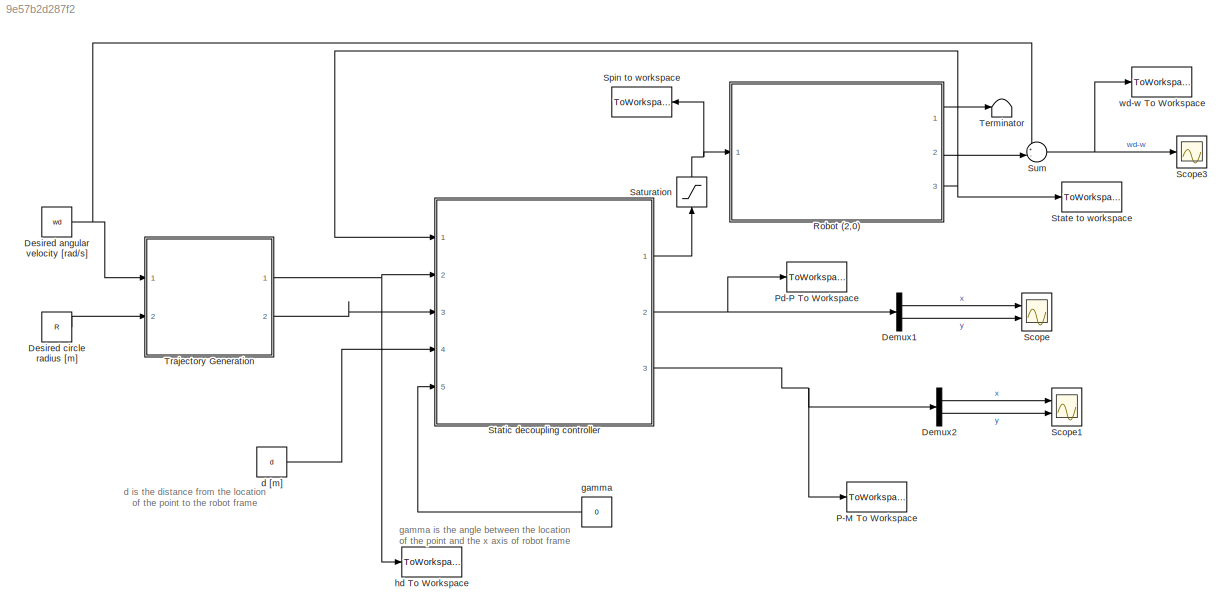
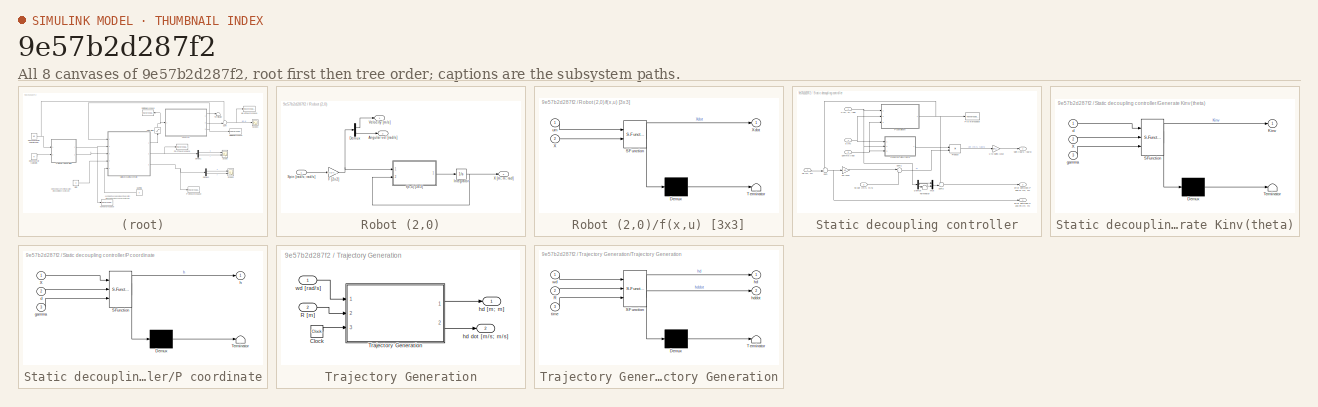
[diagram: thumbnail index - all 8 canvases of the model, root first then tree order]
MODEL slx_9e57b2d287f2
KIND model
CONFIG AbsTol = auto
CONFIG EnableMultiTasking = off
CONFIG FixedStep = auto
CONFIG MaxStep = auto
CONFIG MinStep = auto
CONFIG RelTol = 1e-3
CONFIG SampleTimeConstraint = Unconstrained
CONFIG Solver = VariableStepAuto
CONFIG SolverName = VariableStepAuto
CONFIG StartTime = 0.0
CONFIG StopTime = time
BLOCK [Demux] Demux1
  DisplayOption = bar
  Outputs = 2
  Ports = [1, 2]
BLOCK [Demux] Demux2
  DisplayOption = bar
  Outputs = 2
  Ports = [1, 2]
BLOCK [Constant] Desired angular velocity [rad//s]
  Value = wd
BLOCK [Constant] Desired circle radius [m]
  Value = R
BLOCK [ToWorkspace] P-M To Workspace
  FixptAsFi = on
  MaxDataPoints = inf
  Ports = [1]
  SampleTime = -1
  Save2DSignal = 2-D array (concatenate along first dimension)
  VariableName = P_M
BLOCK [ToWorkspace] Pd-P To Workspace
  FixptAsFi = on
  MaxDataPoints = inf
  Ports = [1]
  SampleTime = -1
  Save2DSignal = 2-D array (concatenate along first dimension)
  VariableName = Pd_P
BLOCK [SubSystem] Robot (2,0)
  Ports = [1, 3]
  RequestExecContextInheritance = off
  Variant = off
BLOCK [Outport] Robot (2,0)/Angular vel [rad//s]
  IconDisplay = Port number
  Port = 2
BLOCK [Demux] Robot (2,0)/Demux
  DisplayOption = bar
  Outputs = 2
  Ports = [1, 2]
BLOCK [Gain] Robot (2,0)/F [2x2]
  Gain = [r/2 r/2; r/(2*L) -r/(2*L)]
  Multiplication = Matrix(K*u)
  OutDataTypeStr = Inherit: Inherit via internal rule
  ParamDataTypeStr = Inherit: Inherit via internal rule
  SaturateOnIntegerOverflow = off
BLOCK [Integrator] Robot (2,0)/Integrator
  InitialCondition = Xstart
  Ports = [1, 1]
BLOCK [Inport] Robot (2,0)/Spin [rad//s; rad//s]
  IconDisplay = Port number
BLOCK [Outport] Robot (2,0)/Velocity [m//s]
  IconDisplay = Port number
BLOCK [Outport] Robot (2,0)/X [m; m; rad]
  IconDisplay = Port number
  Port = 3
BLOCK [SubSystem] Robot (2,0)/f(x,u) [3x3]
  ErrorFcn = Stateflow.Translate.translate
  PermitHierarchicalResolution = ExplicitOnly
  Ports = [2, 1]
  RequestExecContextInheritance = off
  SFBlockType = MATLAB Function
  TreatAsAtomicUnit = on
  Variant = off
BLOCK [Demux] Robot (2,0)/f(x,u) [3x3]/ Demux 
  Outputs = 1
  Ports = [1, 1]
BLOCK [S-Function] Robot (2,0)/f(x,u) [3x3]/ SFunction 
  EnableBusSupport = on
  FunctionName = sf_sfun
  PortCounts = [2 2]
  Ports = [2, 2]
  SFcnIsStateOwnerBlock = off
  SFunctionDeploymentMode = off
  Tag = Stateflow S-Function staticDecouplingControl 2
BLOCK [Terminator] Robot (2,0)/f(x,u) [3x3]/ Terminator 
BLOCK [Inport] Robot (2,0)/f(x,u) [3x3]/X
  IconDisplay = Port number
  Port = 2
BLOCK [Outport] Robot (2,0)/f(x,u) [3x3]/Xdot
  IconDisplay = Port number
BLOCK [Inport] Robot (2,0)/f(x,u) [3x3]/um
  IconDisplay = Port number
BLOCK [Saturate] Saturation
  InputPortMap = u0
  LowerLimit = satMin
  Ports = [1, 1]
  UpperLimit = satMax
BLOCK [Scope] Scope
  NumInputPorts = 2
  Ports = [2]
  ScopeSpecificationString = Simulink.scopes.TimeScopeBlockCfg('CurrentConfiguration', extmgr.ConfigurationSet(extmgr.Configuration('Core','General UI',true),extmgr.Configuration('Core','Source UI',true),extmgr.Configuration('Sources','WiredSimulink',true),extmgr.Configuration('Visuals','Time Domain',true,'SerializedDisplays',{struct('MinYLimReal','-0.16889','MaxYLimReal','0.01997','YLabelReal','','MinYLimMag','0.00000','MaxY...<+1323ch>
BLOCK [Scope] Scope1
  NumInputPorts = 2
  Ports = [2]
  ScopeSpecificationString = Simulink.scopes.TimeScopeBlockCfg('CurrentConfiguration', extmgr.ConfigurationSet(extmgr.Configuration('Core','General UI',true),extmgr.Configuration('Core','Source UI',true),extmgr.Configuration('Sources','WiredSimulink',true,'DataLoggingVariableName','ScopeData1'),extmgr.Configuration('Visuals','Time Domain',true,'SerializedDisplays',{struct('MinYLimReal','-0.1875','MaxYLimReal','0.1875','YLabel...<+1356ch>
BLOCK [Scope] Scope3
  NumInputPorts = 1
  Ports = [1]
  ScopeSpecificationString = Simulink.scopes.TimeScopeBlockCfg('CurrentConfiguration', extmgr.ConfigurationSet(extmgr.Configuration('Core','General UI',true),extmgr.Configuration('Core','Source UI',true),extmgr.Configuration('Sources','WiredSimulink',true,'DataLoggingVariableName','ScopeData1'),extmgr.Configuration('Visuals','Time Domain',true,'SerializedDisplays',{struct('MinYLimReal','0.07408','MaxYLimReal','0.99773','YLabe...<+1361ch>
BLOCK [ToWorkspace] Spin to workspace
  FixptAsFi = on
  MaxDataPoints = inf
  Ports = [1]
  SampleTime = -1
  Save2DSignal = 2-D array (concatenate along first dimension)
  VariableName = spin
BLOCK [ToWorkspace] State to workspace
  FixptAsFi = on
  MaxDataPoints = inf
  Ports = [1]
  SampleTime = -1
  Save2DSignal = 2-D array (concatenate along first dimension)
  VariableName = X
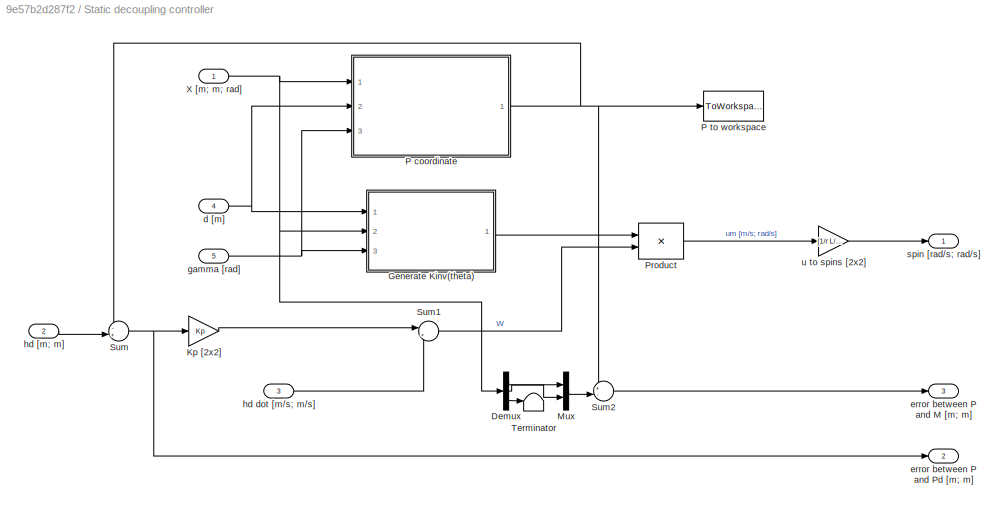
BLOCK [SubSystem] Static decoupling controller
  Ports = [5, 3]
  RequestExecContextInheritance = off
  Variant = off
BLOCK [Demux] Static decoupling controller/Demux
  DisplayOption = bar
  Outputs = 3
  Ports = [1, 3]
BLOCK [SubSystem] Static decoupling controller/Generate Kinv(theta)
  ErrorFcn = Stateflow.Translate.translate
  PermitHierarchicalResolution = ExplicitOnly
  Ports = [3, 1]
  RequestExecContextInheritance = off
  SFBlockType = MATLAB Function
  TreatAsAtomicUnit = on
  Variant = off
BLOCK [Demux] Static decoupling controller/Generate Kinv(theta)/ Demux 
  Outputs = 1
  Ports = [1, 1]
BLOCK [S-Function] Static decoupling controller/Generate Kinv(theta)/ SFunction 
  EnableBusSupport = on
  FunctionName = sf_sfun
  PortCounts = [3 2]
  Ports = [3, 2]
  SFcnIsStateOwnerBlock = off
  SFunctionDeploymentMode = off
  Tag = Stateflow S-Function staticDecouplingControl 1
BLOCK [Terminator] Static decoupling controller/Generate Kinv(theta)/ Terminator 
BLOCK [Outport] Static decoupling controller/Generate Kinv(theta)/Kinv
  IconDisplay = Port number
BLOCK [Inport] Static decoupling controller/Generate Kinv(theta)/X
  IconDisplay = Port number
  Port = 2
BLOCK [Inport] Static decoupling controller/Generate Kinv(theta)/d
  IconDisplay = Port number
BLOCK [Inport] Static decoupling controller/Generate Kinv(theta)/gamma
  IconDisplay = Port number
  Port = 3
BLOCK [Gain] Static decoupling controller/Kp [2x2]
  Gain = Kp
  Multiplication = Matrix(K*u)
  OutDataTypeStr = Inherit: Inherit via internal rule
  ParamDataTypeStr = Inherit: Inherit via internal rule
  SaturateOnIntegerOverflow = off
BLOCK [Mux] Static decoupling controller/Mux
  DisplayOption = bar
  Inputs = 2
  Ports = [2, 1]
BLOCK [SubSystem] Static decoupling controller/P coordinate
  ErrorFcn = Stateflow.Translate.translate
  PermitHierarchicalResolution = ExplicitOnly
  Ports = [3, 1]
  RequestExecContextInheritance = off
  SFBlockType = MATLAB Function
  TreatAsAtomicUnit = on
  Variant = off
BLOCK [Demux] Static decoupling controller/P coordinate/ Demux 
  Outputs = 1
  Ports = [1, 1]
BLOCK [S-Function] Static decoupling controller/P coordinate/ SFunction 
  EnableBusSupport = on
  FunctionName = sf_sfun
  PortCounts = [3 2]
  Ports = [3, 2]
  SFcnIsStateOwnerBlock = off
  SFunctionDeploymentMode = off
  Tag = Stateflow S-Function staticDecouplingControl 4
BLOCK [Terminator] Static decoupling controller/P coordinate/ Terminator 
BLOCK [Inport] Static decoupling controller/P coordinate/X
  IconDisplay = Port number
BLOCK [Inport] Static decoupling controller/P coordinate/d
  IconDisplay = Port number
  Port = 2
BLOCK [Inport] Static decoupling controller/P coordinate/gamma
  IconDisplay = Port number
  Port = 3
BLOCK [Outport] Static decoupling controller/P coordinate/h
  IconDisplay = Port number
BLOCK [ToWorkspace] Static decoupling controller/P to workspace
  FixptAsFi = on
  MaxDataPoints = inf
  Ports = [1]
  SampleTime = -1
  Save2DSignal = 2-D array (concatenate along first dimension)
  VariableName = P
BLOCK [Product] Static decoupling controller/Product
  InputSameDT = off
  Multiplication = Matrix(*)
  OutDataTypeStr = Inherit: Inherit via internal rule
  Ports = [2, 1]
  RndMeth = Floor
  SaturateOnIntegerOverflow = off
BLOCK [Sum] Static decoupling controller/Sum
  IconShape = round
  InputSameDT = off
  Inputs = -+|
  OutDataTypeStr = Inherit: Inherit via internal rule
  Ports = [2, 1]
  SaturateOnIntegerOverflow = off
BLOCK [Sum] Static decoupling controller/Sum1
  IconShape = round
  InputSameDT = off
  Inputs = |++
  OutDataTypeStr = Inherit: Inherit via internal rule
  Ports = [2, 1]
  SaturateOnIntegerOverflow = off
BLOCK [Sum] Static decoupling controller/Sum2
  IconShape = round
  InputSameDT = off
  Inputs = +-|
  OutDataTypeStr = Inherit: Inherit via internal rule
  Ports = [2, 1]
  SaturateOnIntegerOverflow = off
BLOCK [Terminator] Static decoupling controller/Terminator
BLOCK [Inport] Static decoupling controller/X [m; m; rad]
  IconDisplay = Port number
BLOCK [Inport] Static decoupling controller/d [m]
  IconDisplay = Port number
  Port = 4
BLOCK [Outport] Static decoupling controller/error between P and M [m; m]
  IconDisplay = Port number
  Port = 3
BLOCK [Outport] Static decoupling controller/error between P and Pd [m; m] 
  IconDisplay = Port number
  Port = 2
BLOCK [Inport] Static decoupling controller/gamma [rad]
  IconDisplay = Port number
  Port = 5
BLOCK [Inport] Static decoupling controller/hd [m; m]
  IconDisplay = Port number
  Port = 2
BLOCK [Inport] Static decoupling controller/hd dot [m//s; m//s]
  IconDisplay = Port number
  Port = 3
BLOCK [Outport] Static decoupling controller/spin [rad//s; rad//s]
  IconDisplay = Port number
BLOCK [Gain] Static decoupling controller/u to spins [2x2]
  Gain = [1/r L/r; 1/r -L/r]
  Multiplication = Matrix(K*u)
  OutDataTypeStr = Inherit: Inherit via internal rule
  ParamDataTypeStr = Inherit: Inherit via internal rule
  SaturateOnIntegerOverflow = off
BLOCK [Sum] Sum
  IconShape = round
  InputSameDT = off
  Inputs = +-|
  OutDataTypeStr = Inherit: Inherit via internal rule
  Ports = [2, 1]
  SaturateOnIntegerOverflow = off
BLOCK [Terminator] Terminator
BLOCK [SubSystem] Trajectory Generation
  Ports = [2, 2]
  RequestExecContextInheritance = off
  Variant = off
BLOCK [Clock] Trajectory Generation/Clock
BLOCK [Inport] Trajectory Generation/R [m]
  IconDisplay = Port number
  Port = 2
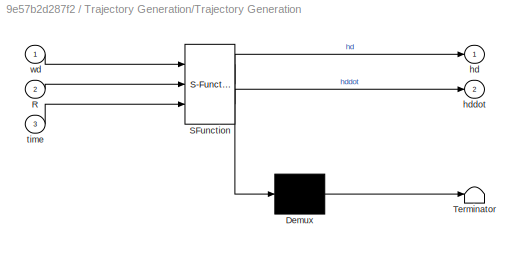
BLOCK [SubSystem] Trajectory Generation/Trajectory Generation
  ErrorFcn = Stateflow.Translate.translate
  PermitHierarchicalResolution = ExplicitOnly
  Ports = [3, 2]
  RequestExecContextInheritance = off
  SFBlockType = MATLAB Function
  TreatAsAtomicUnit = on
  Variant = off
BLOCK [Demux] Trajectory Generation/Trajectory Generation/ Demux 
  Outputs = 1
  Ports = [1, 1]
BLOCK [S-Function] Trajectory Generation/Trajectory Generation/ SFunction 
  EnableBusSupport = on
  FunctionName = sf_sfun
  PortCounts = [3 3]
  Ports = [3, 3]
  SFcnIsStateOwnerBlock = off
  SFunctionDeploymentMode = off
  Tag = Stateflow S-Function staticDecouplingControl 3
BLOCK [Terminator] Trajectory Generation/Trajectory Generation/ Terminator 
BLOCK [Inport] Trajectory Generation/Trajectory Generation/R
  IconDisplay = Port number
  Port = 2
BLOCK [Outport] Trajectory Generation/Trajectory Generation/hd
  IconDisplay = Port number
BLOCK [Outport] Trajectory Generation/Trajectory Generation/hddot
  IconDisplay = Port number
  Port = 2
BLOCK [Inport] Trajectory Generation/Trajectory Generation/time
  IconDisplay = Port number
  Port = 3
BLOCK [Inport] Trajectory Generation/Trajectory Generation/wd
  IconDisplay = Port number
BLOCK [Outport] Trajectory Generation/hd [m; m]
  IconDisplay = Port number
BLOCK [Outport] Trajectory Generation/hd dot [m//s; m//s]
  IconDisplay = Port number
  Port = 2
BLOCK [Inport] Trajectory Generation/wd [rad//s]
  IconDisplay = Port number
BLOCK [Constant] d [m]
  Value = d
BLOCK [Constant] gamma
  Value = 0
BLOCK [ToWorkspace] hd To Workspace
  FixptAsFi = on
  MaxDataPoints = inf
  Ports = [1]
  SampleTime = -1
  Save2DSignal = 2-D array (concatenate along first dimension)
  VariableName = hd
BLOCK [ToWorkspace] wd-w To Workspace
  FixptAsFi = on
  MaxDataPoints = inf
  Ports = [1]
  SampleTime = -1
  Save2DSignal = 2-D array (concatenate along first dimension)
  VariableName = wd_w
ANNOTATION (root): d is the distance from the location of the point to the robot frame
ANNOTATION (root): gamma is the angle between the location of the point and the x axis of robot frame
LINE Demux1:1 -> Scope:1
LINE Demux1:2 -> Scope:2
LINE Demux2:1 -> Scope1:1
LINE Demux2:2 -> Scope1:2
NET Desired angular velocity [rad//s]:1 -> Sum:1, Trajectory Generation:1
LINE Desired circle radius [m]:1 -> Trajectory Generation:2
LINE Robot (2,0)/Demux:1 -> Robot (2,0)/Velocity [m//s]:1
LINE Robot (2,0)/Demux:2 -> Robot (2,0)/Angular vel [rad//s]:1
NET Robot (2,0)/F [2x2]:1 -> Robot (2,0)/Demux:1, Robot (2,0)/f(x,u) [3x3]:1
NET Robot (2,0)/Integrator:1 -> Robot (2,0)/X [m; m; rad]:1, Robot (2,0)/f(x,u) [3x3]:2
LINE Robot (2,0)/Spin [rad//s; rad//s]:1 -> Robot (2,0)/F [2x2]:1
LINE Robot (2,0)/f(x,u) [3x3]:1 -> Robot (2,0)/Integrator:1
LINE Robot (2,0):1 -> Terminator:1
LINE Robot (2,0):2 -> Sum:2
NET Robot (2,0):3 -> State to workspace:1, Static decoupling controller:1
NET Saturation:1 -> Robot (2,0):1, Spin to workspace:1
LINE Static decoupling controller/Demux:1 -> Static decoupling controller/Mux:1
LINE Static decoupling controller/Demux:2 -> Static decoupling controller/Mux:2
LINE Static decoupling controller/Demux:3 -> Static decoupling controller/Terminator:1
LINE Static decoupling controller/Generate Kinv(theta):1 -> Static decoupling controller/Product:1
LINE Static decoupling controller/Kp [2x2]:1 -> Static decoupling controller/Sum1:1
LINE Static decoupling controller/Mux:1 -> Static decoupling controller/Sum2:2
NET Static decoupling controller/P coordinate:1 -> Static decoupling controller/P to workspace:1, Static decoupling controller/Sum2:1, Static decoupling controller/Sum:1
LINE Static decoupling controller/Product:1 -> Static decoupling controller/u to spins [2x2]:1
LINE Static decoupling controller/Sum1:1 -> Static decoupling controller/Product:2
LINE Static decoupling controller/Sum2:1 -> Static decoupling controller/error between P and M [m; m]:1
NET Static decoupling controller/Sum:1 -> Static decoupling controller/Kp [2x2]:1, Static decoupling controller/error between P and Pd [m; m] :1
NET Static decoupling controller/X [m; m; rad]:1 -> Static decoupling controller/Demux:1, Static decoupling controller/Generate Kinv(theta):2, Static decoupling controller/P coordinate:1
NET Static decoupling controller/d [m]:1 -> Static decoupling controller/Generate Kinv(theta):1, Static decoupling controller/P coordinate:2
NET Static decoupling controller/gamma [rad]:1 -> Static decoupling controller/Generate Kinv(theta):3, Static decoupling controller/P coordinate:3
LINE Static decoupling controller/hd [m; m]:1 -> Static decoupling controller/Sum:2
LINE Static decoupling controller/hd dot [m//s; m//s]:1 -> Static decoupling controller/Sum1:2
LINE Static decoupling controller/u to spins [2x2]:1 -> Static decoupling controller/spin [rad//s; rad//s]:1
LINE Static decoupling controller:1 -> Saturation:1
NET Static decoupling controller:2 -> Demux1:1, Pd-P To Workspace:1
NET Static decoupling controller:3 -> Demux2:1, P-M To Workspace:1
NET Sum:1 -> Scope3:1, wd-w To Workspace:1
LINE Trajectory Generation/Clock:1 -> Trajectory Generation/Trajectory Generation:3
LINE Trajectory Generation/R [m]:1 -> Trajectory Generation/Trajectory Generation:2
LINE Trajectory Generation/Trajectory Generation:1 -> Trajectory Generation/hd [m; m]:1
LINE Trajectory Generation/Trajectory Generation:2 -> Trajectory Generation/hd dot [m//s; m//s]:1
LINE Trajectory Generation/wd [rad//s]:1 -> Trajectory Generation/Trajectory Generation:1
NET Trajectory Generation:1 -> Static decoupling controller:2, hd To Workspace:1
LINE Trajectory Generation:2 -> Static decoupling controller:3
LINE d [m]:1 -> Static decoupling controller:4
LINE gamma:1 -> Static decoupling controller:5
note: NET lines group one-source signal fan-out (src -> all destinations, sorted); 1:1 wires keep LINE
CHART Static decoupling controller/Generate Kinv(theta) states=1 transitions=1
  STATE_LABEL 'eML_blk_kernel()'
  STATE_LABEL 'SCRIPT:\nfunction Kinv = generateKinv(d, X, gamma)\n\nK = [cos(X(3)) -d*sin(X(3)+gamma); sin(X(3)) d*cos(X(3)+gamma)];\nKinv = inv(K);\n\n'
CHART Robot (2,0)/f(x,u) [3x3] states=1 transitions=1
  STATE_LABEL 'eML_blk_kernel()'
  STATE_LABEL 'SCRIPT:\nfunction Xdot  = evolutionModel(um, X)\n\nXdot = zeros(3,1);\nXdot(1) = um(1) * cos(X(3));\nXdot(2) = um(1) * sin(X(3));\nXdot(3) = um(2);\n'
CHART Trajectory Generation/Trajectory Generation states=1 transitions=1
  STATE_LABEL 'eML_blk_kernel()'
  STATE_LABEL 'SCRIPT:\nfunction [hd, hddot] = trajectoryGeneration(wd, R, time)\n\nhd = [R*cos(wd*time); R*sin(wd*time)];\n\nhddot = [-R*sin(wd*time)*wd; R*cos(wd*time)*wd];\n'
CHART Static decoupling controller/P coordinate states=1 transitions=1
  STATE_LABEL 'eML_blk_kernel()'
  STATE_LABEL 'SCRIPT:\nfunction h = coordinateP(X ,d, gamma)\n\nh = [X(1)+d*cos(X(3)+gamma); X(2)+d*sin(X(3)+gamma)];\n'
